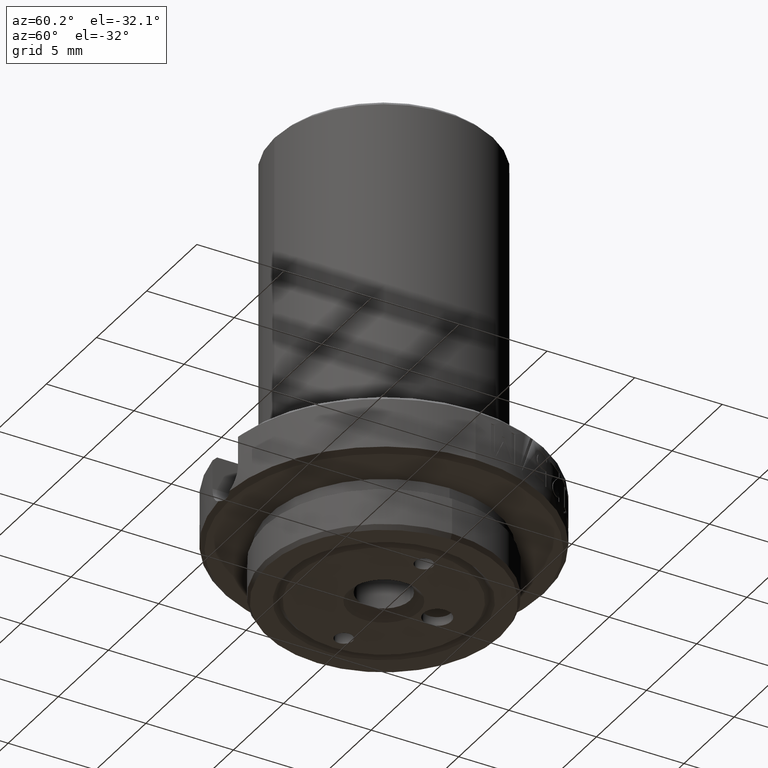
[diagram: clean part render]
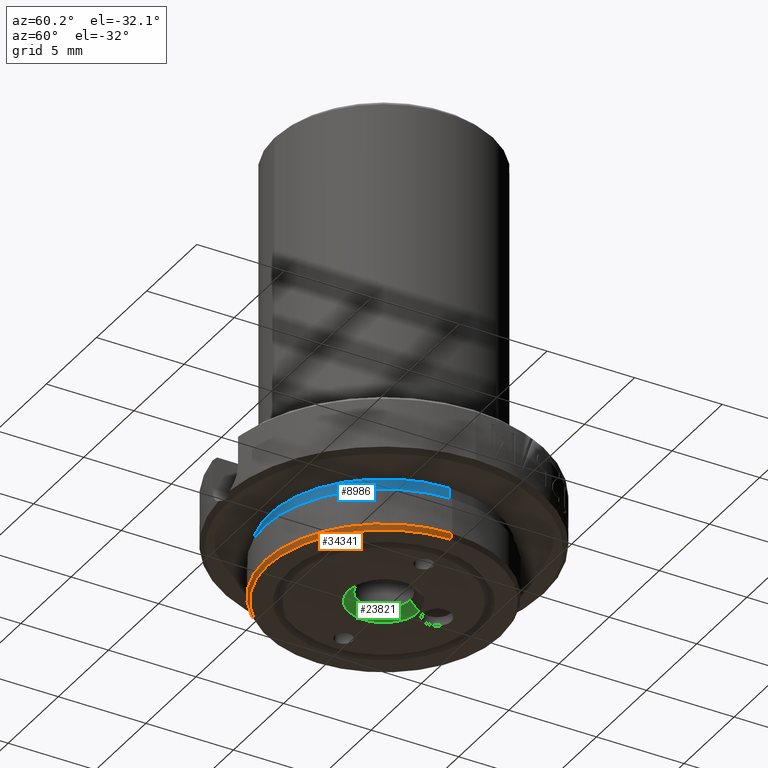
[diagram: same view with three faces highlighted in distinct colors, each labeled with its STEP entity id]
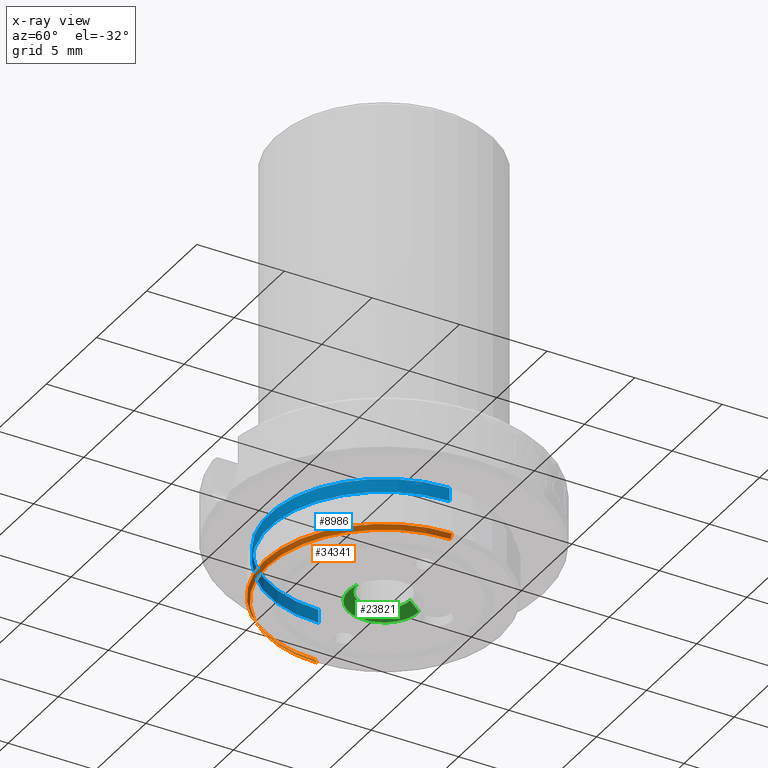
[diagram: x-ray of the same camera — body ghosted, the three highlighted faces saturated]
A machine part, auxiliary view with three faces highlighted in distinct colors.
The next image is the same camera in x-ray (body ghosted, the three faces saturated) — at least one of them is partly hidden behind the body in this view.
Their STEP definitions:

[orange] entity #34341 — the highlighted conical surface has half-angle 30 deg.
#382 = CARTESIAN_POINT ( 'NONE',  ( -5.711228751896165505E-34, 5.696588750603311398E-35, -0.5799999999999998490 ) ) ;
#3446 = FACE_OUTER_BOUND ( 'NONE', #34493, .T. ) ;
#3659 = EDGE_CURVE ( 'NONE', #35507, #18386, #31250, .T. ) ;
#3861 = DIRECTION ( 'NONE',  ( 3.938778449583563290E-33, 1.280132303506362441E-34, 1.000000000000000000 ) ) ;
#4045 = ORIENTED_EDGE ( 'NONE', *, *, #3659, .T. ) ;
#5099 = AXIS2_PLACEMENT_3D ( 'NONE', #382, #35299, #35169 ) ;
#5180 = LINE ( 'NONE', #32791, #15520 ) ;
#5711 = ORIENTED_EDGE ( 'NONE', *, *, #34676, .T. ) ;
#6040 = CARTESIAN_POINT ( 'NONE',  ( 0.2617264973081037671, -6.178374892527574048E-17, -0.5899999999999998579 ) ) ;
#6392 = VERTEX_POINT ( 'NONE', #15029 ) ;
#6914 = DIRECTION ( 'NONE',  ( -1.000000000000000000, 1.110223024625156294E-16, 0.000000000000000000 ) ) ;
#9144 = DIRECTION ( 'NONE',  ( 3.938778449583563290E-33, 1.280132303506362441E-34, 1.000000000000000000 ) ) ;
#11865 = ORIENTED_EDGE ( 'NONE', *, *, #20745, .F. ) ;
#12196 = CARTESIAN_POINT ( 'NONE',  ( -6.105106596854519918E-34, 5.568575520252675860E-35, -0.5899999999999998579 ) ) ;
#13825 = CIRCLE ( 'NONE', #5099, 0.2675000000000000155 ) ;
#14276 = CIRCLE ( 'NONE', #34568, 0.2617264973081037671 ) ;
#15029 = CARTESIAN_POINT ( 'NONE',  ( -0.2617264973081037671, 2.905747834659507940E-17, -0.5899999999999998579 ) ) ;
#15520 = VECTOR ( 'NONE', #30414, 39.37007874015748854 ) ;
#18386 = VERTEX_POINT ( 'NONE', #20638 ) ;
#20638 = CARTESIAN_POINT ( 'NONE',  ( 0.2675000000000000155, -6.245776778591462657E-17, -0.5799999999999998490 ) ) ;
#20745 = EDGE_CURVE ( 'NONE', #6392, #36976, #5180, .T. ) ;
#21182 = CARTESIAN_POINT ( 'NONE',  ( -6.105106596854519918E-34, 5.568575520252675860E-35, -0.5899999999999998579 ) ) ;
#23565 = CARTESIAN_POINT ( 'NONE',  ( 0.2617264973081037671, -6.110973006463684207E-17, -0.5899999999999998579 ) ) ;
#24708 = CARTESIAN_POINT ( 'NONE',  ( -0.2675000000000000155, 2.969846590872293302E-17, -0.5799999999999998490 ) ) ;
#24899 = AXIS2_PLACEMENT_3D ( 'NONE', #21182, #3861, #6914 ) ;
#25944 = EDGE_CURVE ( 'NONE', #36976, #18386, #13825, .T. ) ;
#28527 = VECTOR ( 'NONE', #32780, 39.37007874015748854 ) ;
#30414 = DIRECTION ( 'NONE',  ( -0.4999999999999998335, 5.551115123125779621E-17, 0.8660254037844385966 ) ) ;
#31250 = LINE ( 'NONE', #23565, #28527 ) ;
#32780 = DIRECTION ( 'NONE',  ( 0.4999999999999998335, -1.167434911886254258E-16, 0.8660254037844385966 ) ) ;
#32791 = CARTESIAN_POINT ( 'NONE',  ( -0.2617264973081037671, 2.905747834659507940E-17, -0.5899999999999998579 ) ) ;
#34341 = ADVANCED_FACE ( 'NONE', ( #3446 ), #36467, .T. ) ;
#34493 = EDGE_LOOP ( 'NONE', ( #5711, #4045, #36313, #11865 ) ) ;
#34568 = AXIS2_PLACEMENT_3D ( 'NONE', #12196, #9144, #34936 ) ;
#34676 = EDGE_CURVE ( 'NONE', #6392, #35507, #14276, .T. ) ;
#34936 = DIRECTION ( 'NONE',  ( -1.000000000000000000, 1.110223024625156294E-16, 0.000000000000000000 ) ) ;
#35169 = DIRECTION ( 'NONE',  ( -1.000000000000000000, 1.110223024625156294E-16, 0.000000000000000000 ) ) ;
#35299 = DIRECTION ( 'NONE',  ( 3.938778449583563290E-33, 1.280132303506362441E-34, 1.000000000000000000 ) ) ;
#35507 = VERTEX_POINT ( 'NONE', #6040 ) ;
#36313 = ORIENTED_EDGE ( 'NONE', *, *, #25944, .F. ) ;
#36467 = CONICAL_SURFACE ( 'NONE', #24899, 0.2617264973081037671, 0.5235987755982988157 ) ;
#36976 = VERTEX_POINT ( 'NONE', #24708 ) ;

[blue] entity #8986 — the highlighted cylindrical surface (partial cylindrical patch) has radius 6.5405 mm, axis along (0, 0, 1).
#9 = LINE ( 'NONE', #10249, #28557 ) ;
#152 = LINE ( 'NONE', #35895, #25982 ) ;
#1518 = ORIENTED_EDGE ( 'NONE', *, *, #19848, .F. ) ;
#1813 = CARTESIAN_POINT ( 'NONE',  ( 0.2575000000000000067, -6.012289796214213087E-17, -0.4699999999999999178 ) ) ;
#3422 = CARTESIAN_POINT ( 'NONE',  ( 3.741839527104384886E-34, 8.768906279018581428E-35, -0.3399999999999999134 ) ) ;
#4360 = CARTESIAN_POINT ( 'NONE',  ( -1.378572457354245150E-34, 7.104734284460310875E-35, -0.4699999999999999178 ) ) ;
#6823 = CARTESIAN_POINT ( 'NONE',  ( -2.560205992229313949E-34, 6.720694593408402121E-35, -0.4999999999999998335 ) ) ;
#7381 = DIRECTION ( 'NONE',  ( 3.938778449583563290E-33, 1.280132303506362441E-34, 1.000000000000000000 ) ) ;
#8214 = AXIS2_PLACEMENT_3D ( 'NONE', #4360, #7381, #22043 ) ;
#8986 = ADVANCED_FACE ( 'NONE', ( #24633 ), #36398, .T. ) ;
#9471 = DIRECTION ( 'NONE',  ( 3.938778449583563290E-33, 1.280132303506362441E-34, 1.000000000000000000 ) ) ;
#9517 = VERTEX_POINT ( 'NONE', #32603 ) ;
#9544 = EDGE_CURVE ( 'NONE', #9547, #16935, #25034, .T. ) ;
#9547 = VERTEX_POINT ( 'NONE', #24135 ) ;
#10249 = CARTESIAN_POINT ( 'NONE',  ( 0.2575000000000000067, -6.012289796214213087E-17, -0.3399999999999999134 ) ) ;
#10389 = CARTESIAN_POINT ( 'NONE',  ( 0.2575000000000000067, -6.012289796214213087E-17, -0.4999999999999998335 ) ) ;
#13109 = EDGE_CURVE ( 'NONE', #9547, #9517, #152, .T. ) ;
#14287 = DIRECTION ( 'NONE',  ( -1.000000000000000000, 1.110223024625156294E-16, 0.000000000000000000 ) ) ;
#16935 = VERTEX_POINT ( 'NONE', #10389 ) ;
#17998 = AXIS2_PLACEMENT_3D ( 'NONE', #6823, #9471, #27337 ) ;
#19848 = EDGE_CURVE ( 'NONE', #9517, #22472, #23028, .T. ) ;
#20473 = EDGE_LOOP ( 'NONE', ( #21195, #30979, #1518, #23627 ) ) ;
#21195 = ORIENTED_EDGE ( 'NONE', *, *, #9544, .T. ) ;
#21215 = DIRECTION ( 'NONE',  ( 3.938778449583563290E-33, 1.280132303506362441E-34, 1.000000000000000000 ) ) ;
#22043 = DIRECTION ( 'NONE',  ( -1.000000000000000000, 1.110223024625156294E-16, 0.000000000000000000 ) ) ;
#22472 = VERTEX_POINT ( 'NONE', #1813 ) ;
#23028 = CIRCLE ( 'NONE', #8214, 0.2575000000000000067 ) ;
#23627 = ORIENTED_EDGE ( 'NONE', *, *, #13109, .F. ) ;
#24135 = CARTESIAN_POINT ( 'NONE',  ( -0.2575000000000000067, 2.858824288409777549E-17, -0.4999999999999998335 ) ) ;
#24554 = EDGE_CURVE ( 'NONE', #16935, #22472, #9, .T. ) ;
#24633 = FACE_OUTER_BOUND ( 'NONE', #20473, .T. ) ;
#25034 = CIRCLE ( 'NONE', #17998, 0.2575000000000000067 ) ;
#25982 = VECTOR ( 'NONE', #21215, 39.37007874015748143 ) ;
#27337 = DIRECTION ( 'NONE',  ( -1.000000000000000000, 1.110223024625156294E-16, 0.000000000000000000 ) ) ;
#27597 = AXIS2_PLACEMENT_3D ( 'NONE', #3422, #31819, #14287 ) ;
#27742 = DIRECTION ( 'NONE',  ( 3.938778449583563290E-33, 1.280132303506362441E-34, 1.000000000000000000 ) ) ;
#28557 = VECTOR ( 'NONE', #27742, 39.37007874015748143 ) ;
#30979 = ORIENTED_EDGE ( 'NONE', *, *, #24554, .T. ) ;
#31819 = DIRECTION ( 'NONE',  ( 3.938778449583563290E-33, 1.280132303506362441E-34, 1.000000000000000000 ) ) ;
#32603 = CARTESIAN_POINT ( 'NONE',  ( -0.2575000000000000067, 2.858824288409777549E-17, -0.4699999999999999178 ) ) ;
#35895 = CARTESIAN_POINT ( 'NONE',  ( -0.2575000000000000067, 2.858824288409777549E-17, -0.3399999999999999134 ) ) ;
#36398 = CYLINDRICAL_SURFACE ( 'NONE', #27597, 0.2575000000000000067 ) ;

[green] entity #23821 — the highlighted conical surface has half-angle 45 deg.
#1006 = AXIS2_PLACEMENT_3D ( 'NONE', #32572, #29561, #29811 ) ;
#2288 = ORIENTED_EDGE ( 'NONE', *, *, #7284, .T. ) ;
#3356 = CARTESIAN_POINT ( 'NONE',  ( 0.000000000000000000, 0.07905511811023646640, -0.5899999999999998579 ) ) ;
#3844 = ORIENTED_EDGE ( 'NONE', *, *, #27913, .F. ) ;
#4318 = LINE ( 'NONE', #21915, #23768 ) ;
#7284 = EDGE_CURVE ( 'NONE', #25207, #22349, #4318, .T. ) ;
#8146 = DIRECTION ( 'NONE',  ( 0.000000000000000000, -3.990737555713287577E-32, -1.000000000000000000 ) ) ;
#9323 = AXIS2_PLACEMENT_3D ( 'NONE', #19281, #10421, #27920 ) ;
#10421 = DIRECTION ( 'NONE',  ( -0.000000000000000000, 6.065921084684207584E-32, 1.000000000000000000 ) ) ;
#10889 = EDGE_CURVE ( 'NONE', #26024, #15021, #25909, .T. ) ;
#11871 = FACE_OUTER_BOUND ( 'NONE', #26058, .T. ) ;
#13131 = CIRCLE ( 'NONE', #9323, 0.07905511811023646640 ) ;
#15021 = VERTEX_POINT ( 'NONE', #3356 ) ;
#18581 = CIRCLE ( 'NONE', #36302, 0.05905511811023613639 ) ;
#19281 = CARTESIAN_POINT ( 'NONE',  ( 0.000000000000000000, -3.578893439963681489E-32, -0.5899999999999998579 ) ) ;
#19864 = DIRECTION ( 'NONE',  ( 0.000000000000000000, 0.7071067811865486830, -0.7071067811865462405 ) ) ;
#21915 = CARTESIAN_POINT ( 'NONE',  ( 7.232166136696958041E-18, -0.05905511811023613639, -0.5699999999999996181 ) ) ;
#22179 = ORIENTED_EDGE ( 'NONE', *, *, #36656, .F. ) ;
#22349 = VERTEX_POINT ( 'NONE', #26636 ) ;
#22855 = CARTESIAN_POINT ( 'NONE',  ( 7.232166136696958041E-18, -0.05905511811023613639, -0.5699999999999996181 ) ) ;
#23607 = VECTOR ( 'NONE', #19864, 39.37007874015748854 ) ;
#23768 = VECTOR ( 'NONE', #37191, 39.37007874015748854 ) ;
#23821 = ADVANCED_FACE ( 'NONE', ( #11871 ), #25481, .F. ) ;
#25207 = VERTEX_POINT ( 'NONE', #22855 ) ;
#25481 = CONICAL_SURFACE ( 'NONE', #1006, 0.05905511811023613639, 0.7853981633974500554 ) ;
#25762 = CARTESIAN_POINT ( 'NONE',  ( 0.000000000000000000, -3.499078688849414851E-32, -0.5699999999999996181 ) ) ;
#25909 = LINE ( 'NONE', #33771, #23607 ) ;
#26024 = VERTEX_POINT ( 'NONE', #33140 ) ;
#26058 = EDGE_LOOP ( 'NONE', ( #22179, #2288, #3844, #31793 ) ) ;
#26636 = CARTESIAN_POINT ( 'NONE',  ( 9.681459734991705255E-18, -0.07905511811023646640, -0.5899999999999998579 ) ) ;
#27913 = EDGE_CURVE ( 'NONE', #15021, #22349, #13131, .T. ) ;
#27920 = DIRECTION ( 'NONE',  ( 0.000000000000000000, -1.000000000000000000, 0.000000000000000000 ) ) ;
#28539 = DIRECTION ( 'NONE',  ( 0.000000000000000000, -1.000000000000000000, 0.000000000000000000 ) ) ;
#29561 = DIRECTION ( 'NONE',  ( 0.000000000000000000, -3.990737555713287577E-32, -1.000000000000000000 ) ) ;
#29811 = DIRECTION ( 'NONE',  ( 0.000000000000000000, 1.000000000000000000, 0.000000000000000000 ) ) ;
#31793 = ORIENTED_EDGE ( 'NONE', *, *, #10889, .F. ) ;
#32572 = CARTESIAN_POINT ( 'NONE',  ( 0.000000000000000000, -3.499078688849414851E-32, -0.5699999999999996181 ) ) ;
#33140 = CARTESIAN_POINT ( 'NONE',  ( 0.000000000000000000, 0.05905511811023613639, -0.5699999999999996181 ) ) ;
#33771 = CARTESIAN_POINT ( 'NONE',  ( 0.000000000000000000, 0.05905511811023613639, -0.5699999999999996181 ) ) ;
#36302 = AXIS2_PLACEMENT_3D ( 'NONE', #25762, #8146, #28539 ) ;
#36656 = EDGE_CURVE ( 'NONE', #25207, #26024, #18581, .T. ) ;
#37191 = DIRECTION ( 'NONE',  ( 8.659560562354947649E-17, -0.7071067811865486830, -0.7071067811865462405 ) ) ;